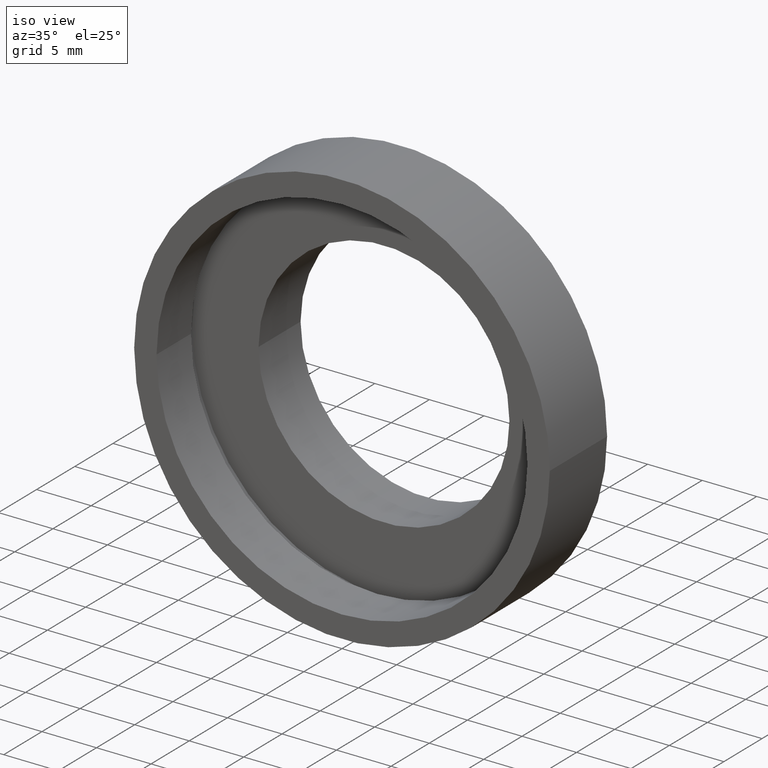
[diagram: clean part render]
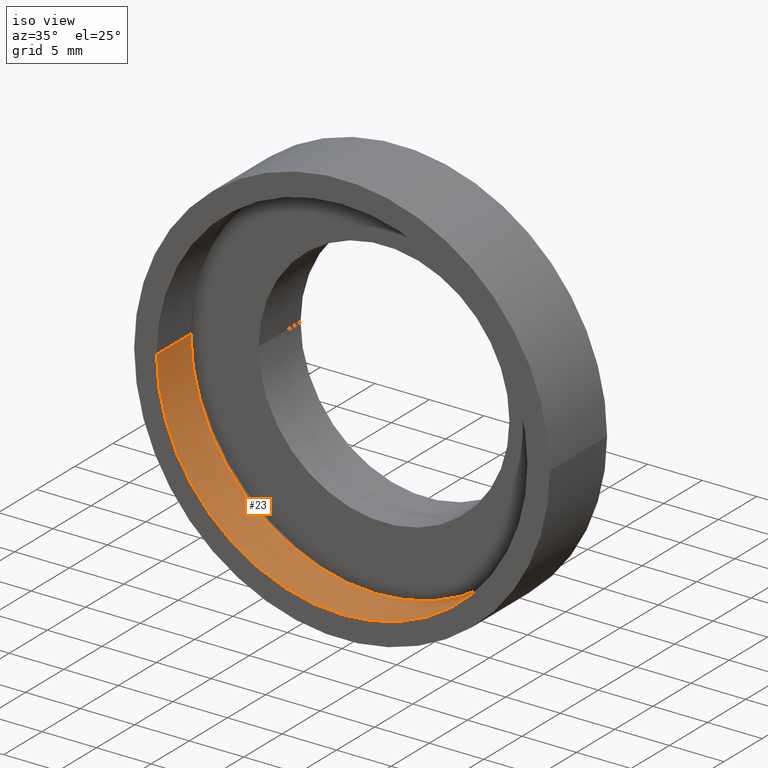
[diagram: same view with one face highlighted and labeled with its STEP entity id]
A machine part, iso view. The second image highlights one B-rep face of the part: STEP entity #23.
In plain terms, the highlighted cylindrical surface (partial cylindrical patch) has radius 17 mm, axis along (-0, 1, -0).
Its self-contained STEP definition (entity closure, byte-faithful):
#1 = FACE_OUTER_BOUND ( 'NONE', #17, .T. ) ;
#17 = EDGE_LOOP ( 'NONE', ( #224, #89, #512, #81 ) ) ;
#23 = ADVANCED_FACE ( 'NONE', ( #1 ), #95, .F. ) ;
#35 = EDGE_CURVE ( 'NONE', #344, #572, #447, .T. ) ;
#47 = DIRECTION ( 'NONE',  ( -1.000000000000000000, -1.224646799147351500E-016, 0.0000000000000000000 ) ) ;
#81 = ORIENTED_EDGE ( 'NONE', *, *, #204, .F. ) ;
#89 = ORIENTED_EDGE ( 'NONE', *, *, #154, .T. ) ;
#92 = CARTESIAN_POINT ( 'NONE',  ( 2.067940818438636500E-015, -3.469446951953614200E-015, 0.0000000000000000000 ) ) ;
#95 = CYLINDRICAL_SURFACE ( 'NONE', #166, 17.00000000000000000 ) ;
#97 = CARTESIAN_POINT ( 'NONE',  ( 17.00000000000000400, -1.387547393403117700E-015, 2.081899558550500700E-015 ) ) ;
#154 = EDGE_CURVE ( 'NONE', #281, #344, #357, .T. ) ;
#165 = CARTESIAN_POINT ( 'NONE',  ( 0.0000000000000000000, 16.88601823708207700, 0.0000000000000000000 ) ) ;
#166 = AXIS2_PLACEMENT_3D ( 'NONE', #165, #303, #514 ) ;
#171 = VERTEX_POINT ( 'NONE', #522 ) ;
#181 = DIRECTION ( 'NONE',  ( -1.224646799147351000E-016, 1.000000000000000000, -0.0000000000000000000 ) ) ;
#204 = EDGE_CURVE ( 'NONE', #171, #572, #538, .T. ) ;
#224 = ORIENTED_EDGE ( 'NONE', *, *, #264, .F. ) ;
#260 = CARTESIAN_POINT ( 'NONE',  ( -17.00000000000000400, 4.499999999999997300, 0.0000000000000000000 ) ) ;
#264 = EDGE_CURVE ( 'NONE', #281, #171, #346, .T. ) ;
#281 = VERTEX_POINT ( 'NONE', #97 ) ;
#303 = DIRECTION ( 'NONE',  ( -1.224646799147351000E-016, 1.000000000000000000, -0.0000000000000000000 ) ) ;
#322 = DIRECTION ( 'NONE',  ( -1.224646799147351000E-016, 1.000000000000000000, -0.0000000000000000000 ) ) ;
#323 = DIRECTION ( 'NONE',  ( -1.224646799147351000E-016, 1.000000000000000000, -0.0000000000000000000 ) ) ;
#331 = AXIS2_PLACEMENT_3D ( 'NONE', #92, #391, #47 ) ;
#339 = VECTOR ( 'NONE', #323, 1000.000000000000000 ) ;
#344 = VERTEX_POINT ( 'NONE', #586 ) ;
#346 = CIRCLE ( 'NONE', #331, 17.00000000000000000 ) ;
#357 = LINE ( 'NONE', #568, #339 ) ;
#370 = CARTESIAN_POINT ( 'NONE',  ( 1.516849758822328100E-015, 4.499999999999999100, 0.0000000000000000000 ) ) ;
#386 = AXIS2_PLACEMENT_3D ( 'NONE', #370, #181, #413 ) ;
#391 = DIRECTION ( 'NONE',  ( -1.224646799147351000E-016, 1.000000000000000000, -0.0000000000000000000 ) ) ;
#411 = VECTOR ( 'NONE', #322, 1000.000000000000000 ) ;
#413 = DIRECTION ( 'NONE',  ( -1.000000000000000000, -1.020425574104004000E-016, 0.0000000000000000000 ) ) ;
#447 = CIRCLE ( 'NONE', #386, 17.00000000000000400 ) ;
#480 = CARTESIAN_POINT ( 'NONE',  ( -17.00000000000000000, 16.88601823708207300, 0.0000000000000000000 ) ) ;
#512 = ORIENTED_EDGE ( 'NONE', *, *, #35, .T. ) ;
#514 = DIRECTION ( 'NONE',  ( -1.000000000000000000, -2.040851148208008200E-016, 0.0000000000000000000 ) ) ;
#522 = CARTESIAN_POINT ( 'NONE',  ( -16.99999999999999600, -5.551346510504111700E-015, 0.0000000000000000000 ) ) ;
#538 = LINE ( 'NONE', #480, #411 ) ;
#568 = CARTESIAN_POINT ( 'NONE',  ( 17.00000000000000000, 16.88601823708208000, 2.081899558550500300E-015 ) ) ;
#572 = VERTEX_POINT ( 'NONE', #260 ) ;
#586 = CARTESIAN_POINT ( 'NONE',  ( 17.00000000000000400, 4.500000000000000900, 2.081899558550500700E-015 ) ) ;